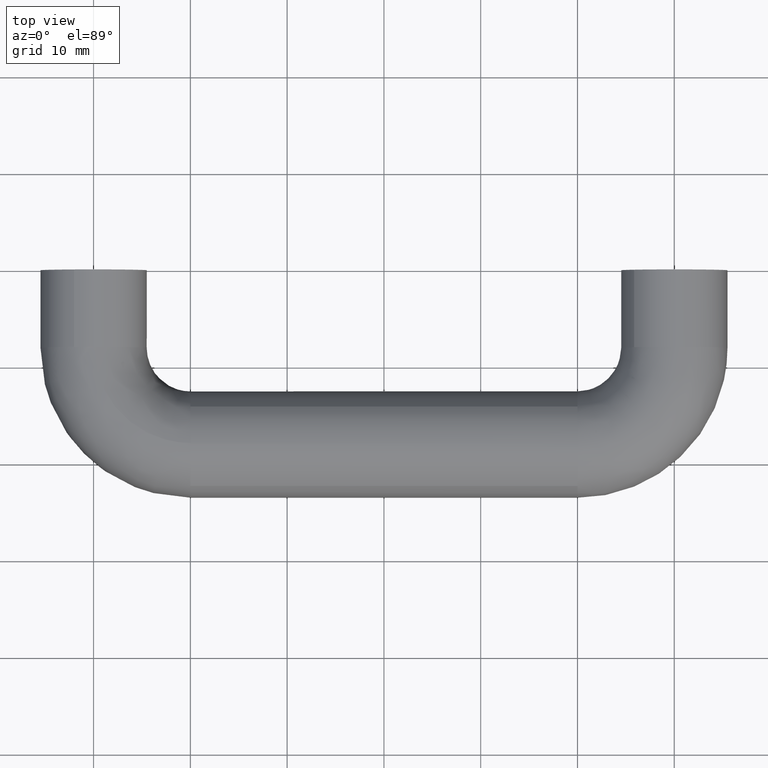
[diagram: clean part render]
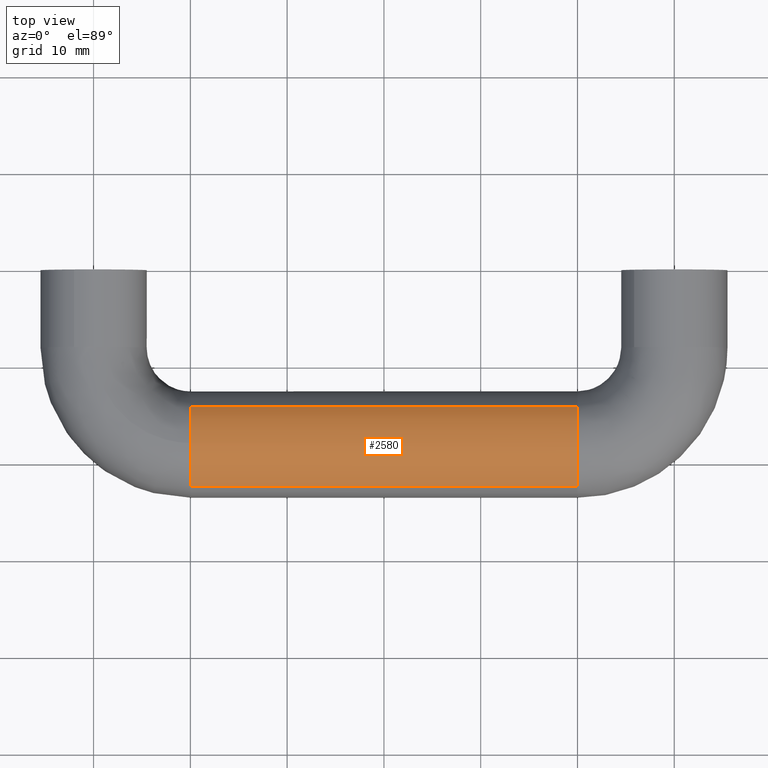
[diagram: same view with one face highlighted and labeled with its STEP entity id]
A machine part, top view. The second image highlights one B-rep face of the part: STEP entity #2580.
In plain terms, the highlighted face is a freeform B-spline surface patch.
Its self-contained STEP definition (entity closure, byte-faithful):
#2355=CARTESIAN_POINT('',(50.000000000000007,-22.341755019080448,3.376264704416581));
#2356=VERTEX_POINT('',#2355);
#2372=CARTESIAN_POINT('',(10.0,-22.341757417584599,3.376261620021094));
#2373=VERTEX_POINT('',#2372);
#2374=CARTESIAN_POINT('',(10.0,-22.341757417584599,3.376261620021094));
#2375=CARTESIAN_POINT('',(50.000000000000007,-22.341755019080448,3.376264704416581));
#2376=QUASI_UNIFORM_CURVE('',1,(#2374,#2375),.UNSPECIFIED.,.F.,.U.);
#2377=EDGE_CURVE('',#2373,#2356,#2376,.T.);
#2411=CARTESIAN_POINT('',(10.000001797236219,-14.144999150298119,3.922877572459886));
#2412=VERTEX_POINT('',#2411);
#2428=CARTESIAN_POINT('',(50.0,-14.144999225929190,3.922877646819151));
#2429=VERTEX_POINT('',#2428);
#2430=CARTESIAN_POINT('',(10.000001797236219,-14.144999150298119,3.922877572459886));
#2431=CARTESIAN_POINT('',(50.0,-14.144999225929190,3.922877646819151));
#2432=QUASI_UNIFORM_CURVE('',1,(#2430,#2431),.UNSPECIFIED.,.F.,.U.);
#2433=EDGE_CURVE('',#2412,#2429,#2432,.T.);
#2483=CARTESIAN_POINT('',(8.999999999830541,-14.115135553695943,3.893530697848977));
#2484=CARTESIAN_POINT('',(8.999999999830546,-14.130043720987674,3.908180913044622));
#2485=CARTESIAN_POINT('',(8.999999999830541,-18.067876516698817,7.777878423997177));
#2486=CARTESIAN_POINT('',(8.999999999830541,-21.922877470347998,3.855000953649177));
#2487=CARTESIAN_POINT('',(8.999999999830541,-22.146181596761231,3.627765023729886));
#2488=CARTESIAN_POINT('',(8.999999999830543,-22.355247446146734,3.358913933155281));
#2489=CARTESIAN_POINT('',(8.999999999830543,-22.368777905327779,3.341514253975300));
#2490=CARTESIAN_POINT('',(51.025000000554897,-14.115135553695943,3.893530697848977));
#2491=CARTESIAN_POINT('',(51.025000000554925,-14.130043720987674,3.908180913044622));
#2492=CARTESIAN_POINT('',(51.025000000554897,-18.067876516698817,7.777878423997177));
#2493=CARTESIAN_POINT('',(51.025000000554897,-21.922877470347998,3.855000953649177));
#2494=CARTESIAN_POINT('',(51.025000000554890,-22.146181596761231,3.627765023729886));
#2495=CARTESIAN_POINT('',(51.025000000554897,-22.355247446146734,3.358913933155281));
#2496=CARTESIAN_POINT('',(51.025000000554890,-22.368777905327779,3.341514253975300));
#2504=(BOUNDED_SURFACE()B_SPLINE_SURFACE(2,1,((#2483,#2490),(#2484,#2491),(#2485,#2492),(#2486,#2493),(#2487,#2494),(#2488,#2495),(#2489,#2496)),.UNSPECIFIED.,.F.,.F.,.U.)B_SPLINE_SURFACE_WITH_KNOTS((3,1,2,1,3),(2,2),(0.0,0.049208424610431,9.161906796818519,9.890922666595168,9.940136475067074),(0.0,42.025000000724361),.UNSPECIFIED.)GEOMETRIC_REPRESENTATION_ITEM()RATIONAL_B_SPLINE_SURFACE(((1.003163237339413,1.003163237339413),(1.001581618669706,1.001581618669706),(0.707106781186548,0.707106781186548),(1.0,1.0),(0.976568542494924,0.976568542494924),(0.955557413151263,0.955557413151263),(0.954228708111865,0.954228708111865)))REPRESENTATION_ITEM('')SURFACE());
#2505=CARTESIAN_POINT('',(50.0,-18.0,5.500000000000000));
#2506=VERTEX_POINT('',#2505);
#2507=CARTESIAN_POINT('',(50.000000000000007,-22.341755019080441,3.376264704416581));
#2508=CARTESIAN_POINT('',(49.999999999999993,-20.690282172345231,5.499999999999999));
#2509=CARTESIAN_POINT('',(50.0,-18.0,5.500000000000000));
#2517=(BOUNDED_CURVE()B_SPLINE_CURVE(2,(#2507,#2508,#2509),.UNSPECIFIED.,.F.,.U.)B_SPLINE_CURVE_WITH_KNOTS((3,3),(0.356197783944040,0.500000000000000),.UNSPECIFIED.)CURVE()GEOMETRIC_REPRESENTATION_ITEM()RATIONAL_B_SPLINE_CURVE((0.856866817333872,0.831525224267449,1.0))REPRESENTATION_ITEM(''));
#2518=EDGE_CURVE('',#2356,#2506,#2517,.T.);
#2519=ORIENTED_EDGE('',*,*,#2518,.T.);
#2520=CARTESIAN_POINT('',(50.0,-18.0,5.500000000000000));
#2521=CARTESIAN_POINT('',(49.999999999999993,-15.749890886062126,5.500000000000000));
#2522=CARTESIAN_POINT('',(50.0,-14.144999225929183,3.922877646819151));
#2530=(BOUNDED_CURVE()B_SPLINE_CURVE(2,(#2520,#2521,#2522),.UNSPECIFIED.,.F.,.U.)B_SPLINE_CURVE_WITH_KNOTS((3,3),(0.500000000000000,0.623683228594154),.UNSPECIFIED.)CURVE()GEOMETRIC_REPRESENTATION_ITEM()RATIONAL_B_SPLINE_CURVE((1.0,0.855096084255273,0.853569641592491))REPRESENTATION_ITEM(''));
#2531=EDGE_CURVE('',#2506,#2429,#2530,.T.);
#2532=ORIENTED_EDGE('',*,*,#2531,.T.);
#2533=ORIENTED_EDGE('',*,*,#2433,.F.);
#2534=CARTESIAN_POINT('',(9.999999999847779,-17.930886780498099,5.499565743119184));
#2535=VERTEX_POINT('',#2534);
#2536=CARTESIAN_POINT('',(9.999999999847779,-17.930886780498099,5.499565743119184));
#2537=CARTESIAN_POINT('',(10.000000732081837,-15.721190587738082,5.471796419966542));
#2538=CARTESIAN_POINT('',(10.000001797236218,-14.144999150298117,3.922877572459887));
#2546=(BOUNDED_CURVE()B_SPLINE_CURVE(2,(#2536,#2537,#2538),.UNSPECIFIED.,.F.,.U.)B_SPLINE_CURVE_WITH_KNOTS((3,3),(0.502215704087447,0.623683234415282),.UNSPECIFIED.)CURVE()GEOMETRIC_REPRESENTATION_ITEM()RATIONAL_B_SPLINE_CURVE((0.994854295622895,0.855068732335064,0.853569641448808))REPRESENTATION_ITEM(''));
#2547=EDGE_CURVE('',#2535,#2412,#2546,.T.);
#2548=ORIENTED_EDGE('',*,*,#2547,.F.);
#2549=CARTESIAN_POINT('',(10.0,-18.0,5.500000000000000));
#2550=VERTEX_POINT('',#2549);
#2551=CARTESIAN_POINT('',(10.0,-18.0,5.500000000000000));
#2552=CARTESIAN_POINT('',(10.000000000000002,-17.965442025901130,5.500000000000000));
#2553=CARTESIAN_POINT('',(9.999999999847779,-17.930886780498096,5.499565743119184));
#2561=(BOUNDED_CURVE()B_SPLINE_CURVE(2,(#2551,#2552,#2553),.UNSPECIFIED.,.F.,.U.)B_SPLINE_CURVE_WITH_KNOTS((3,3),(0.500000000000000,0.502215704087447),.UNSPECIFIED.)CURVE()GEOMETRIC_REPRESENTATION_ITEM()RATIONAL_B_SPLINE_CURVE((1.0,0.997404141191558,0.994854295622894))REPRESENTATION_ITEM(''));
#2562=EDGE_CURVE('',#2550,#2535,#2561,.T.);
#2563=ORIENTED_EDGE('',*,*,#2562,.F.);
#2564=CARTESIAN_POINT('',(10.000000000000002,-22.341757417584606,3.376261620021093));
#2565=CARTESIAN_POINT('',(9.999999999999998,-20.690284133002358,5.500000000000000));
#2566=CARTESIAN_POINT('',(10.0,-18.0,5.500000000000000));
#2574=(BOUNDED_CURVE()B_SPLINE_CURVE(2,(#2564,#2565,#2566),.UNSPECIFIED.,.F.,.U.)B_SPLINE_CURVE_WITH_KNOTS((3,3),(0.356197696798579,0.500000000000000),.UNSPECIFIED.)CURVE()GEOMETRIC_REPRESENTATION_ITEM()RATIONAL_B_SPLINE_CURVE((0.856866848048419,0.831525122170191,1.0))REPRESENTATION_ITEM(''));
#2575=EDGE_CURVE('',#2373,#2550,#2574,.T.);
#2576=ORIENTED_EDGE('',*,*,#2575,.F.);
#2577=ORIENTED_EDGE('',*,*,#2377,.T.);
#2578=EDGE_LOOP('',(#2519,#2532,#2533,#2548,#2563,#2576,#2577));
#2579=FACE_OUTER_BOUND('',#2578,.T.);
#2580=ADVANCED_FACE('',(#2579),#2504,.T.);